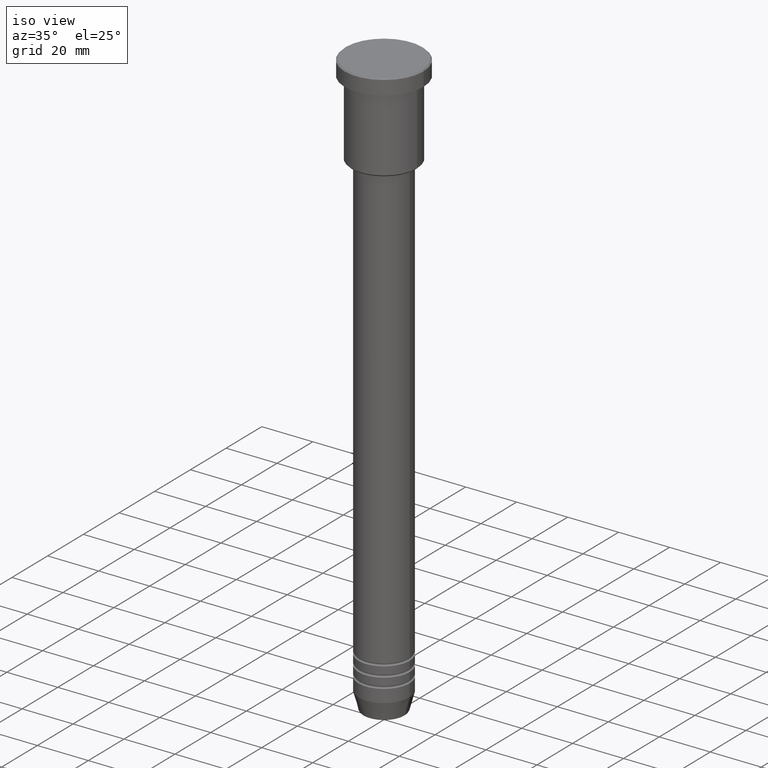
[diagram: clean part render]
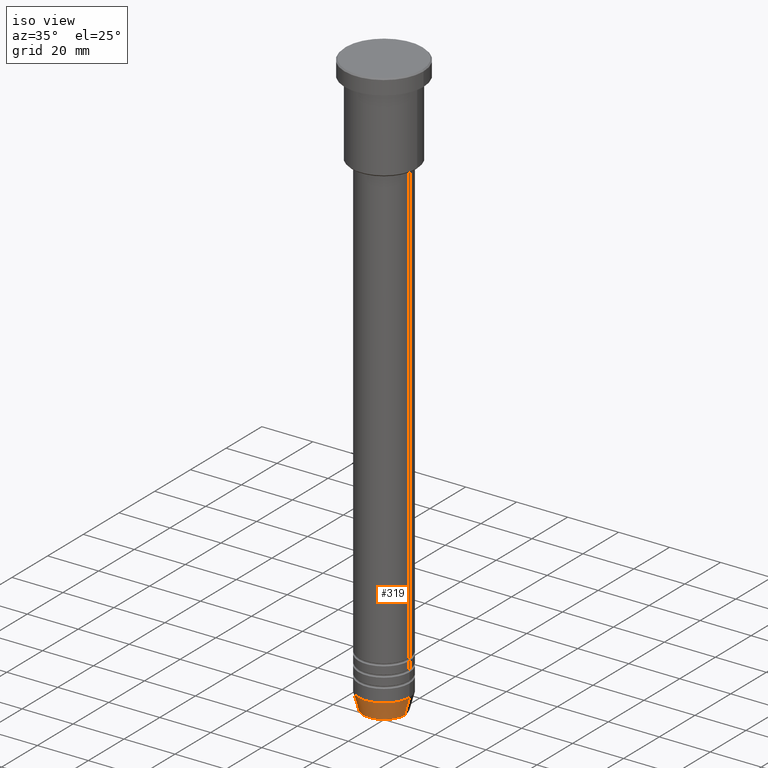
[diagram: same view with one face highlighted and labeled with its STEP entity id]
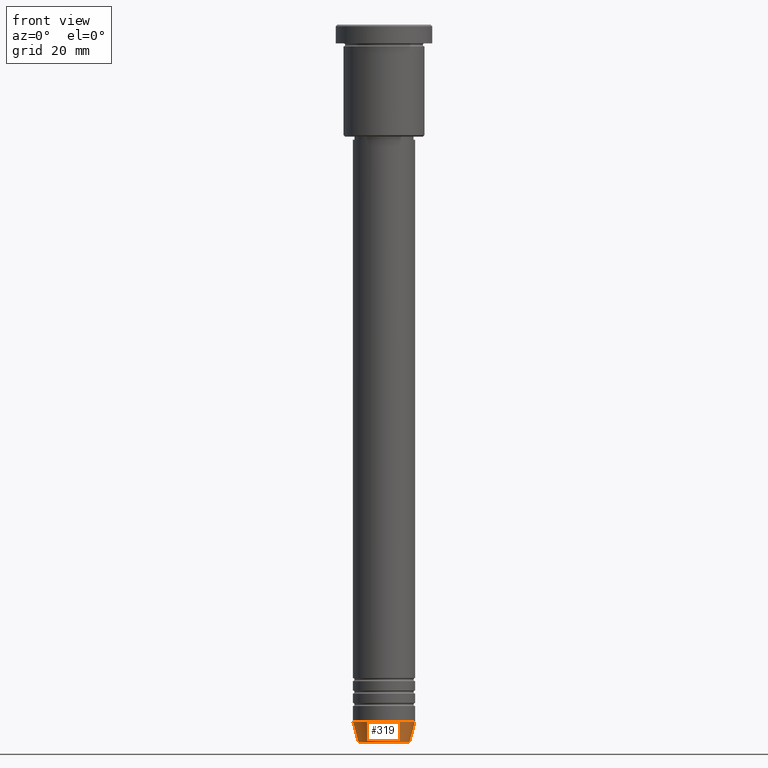
[diagram: same view with one face highlighted and labeled with its STEP entity id]
A machine part, iso view. The second image highlights one B-rep face of the part: STEP entity #319.
A second angle (front view) of the same face is appended — the face is thin or edge-on in the first view.
In plain terms, the highlighted conical surface has half-angle 15 deg.
Its self-contained STEP definition (entity closure, byte-faithful):
#9 = CIRCLE ( 'NONE', #362, 8.223655072137185940 ) ;
#43 = DIRECTION ( 'NONE',  ( -0.2588190451025210725, 3.169619151431769255E-17, 0.9659258262890680902 ) ) ;
#87 = CARTESIAN_POINT ( 'NONE',  ( 0.000000000000000000, 0.000000000000000000, -230.6294095225513274 ) ) ;
#125 = ORIENTED_EDGE ( 'NONE', *, *, #776, .T. ) ;
#167 = EDGE_LOOP ( 'NONE', ( #587, #125, #676, #810 ) ) ;
#210 = DIRECTION ( 'NONE',  ( -0.000000000000000000, -0.000000000000000000, 1.000000000000000000 ) ) ;
#233 = CARTESIAN_POINT ( 'NONE',  ( -10.00000000000000000, 1.224646799147353256E-15, -224.0000000000000284 ) ) ;
#265 = DIRECTION ( 'NONE',  ( 1.000000000000000000, 0.000000000000000000, 0.000000000000000000 ) ) ;
#308 = CARTESIAN_POINT ( 'NONE',  ( 10.00000000000000000, 0.000000000000000000, -224.0000000000000284 ) ) ;
#319 = ADVANCED_FACE ( 'NONE', ( #1103 ), #1039, .T. ) ;
#339 = CIRCLE ( 'NONE', #1116, 10.00000000000000000 ) ;
#362 = AXIS2_PLACEMENT_3D ( 'NONE', #87, #633, #563 ) ;
#417 = LINE ( 'NONE', #955, #1120 ) ;
#446 = CARTESIAN_POINT ( 'NONE',  ( 8.223655072137185940, 0.000000000000000000, -230.6294095225513274 ) ) ;
#476 = CARTESIAN_POINT ( 'NONE',  ( 0.000000000000000000, 0.000000000000000000, -224.0000000000000284 ) ) ;
#506 = CARTESIAN_POINT ( 'NONE',  ( -8.223655072137185940, 1.115877042642911659E-15, -230.6294095225513274 ) ) ;
#538 = CARTESIAN_POINT ( 'NONE',  ( 0.000000000000000000, 0.000000000000000000, -224.0000000000000284 ) ) ;
#549 = VERTEX_POINT ( 'NONE', #796 ) ;
#563 = DIRECTION ( 'NONE',  ( 1.000000000000000000, 0.000000000000000000, 0.000000000000000000 ) ) ;
#587 = ORIENTED_EDGE ( 'NONE', *, *, #965, .F. ) ;
#633 = DIRECTION ( 'NONE',  ( -0.000000000000000000, -0.000000000000000000, 1.000000000000000000 ) ) ;
#676 = ORIENTED_EDGE ( 'NONE', *, *, #970, .T. ) ;
#776 = EDGE_CURVE ( 'NONE', #952, #998, #9, .T. ) ;
#796 = CARTESIAN_POINT ( 'NONE',  ( -10.00000000000000000, 1.224646799147353256E-15, -224.0000000000000284 ) ) ;
#810 = ORIENTED_EDGE ( 'NONE', *, *, #1047, .F. ) ;
#859 = LINE ( 'NONE', #233, #961 ) ;
#868 = DIRECTION ( 'NONE',  ( 0.2588190451025210725, 0.000000000000000000, 0.9659258262890680902 ) ) ;
#937 = DIRECTION ( 'NONE',  ( 1.000000000000000000, 0.000000000000000000, 0.000000000000000000 ) ) ;
#952 = VERTEX_POINT ( 'NONE', #506 ) ;
#955 = CARTESIAN_POINT ( 'NONE',  ( 10.00000000000000000, 0.000000000000000000, -224.0000000000000284 ) ) ;
#959 = AXIS2_PLACEMENT_3D ( 'NONE', #476, #210, #937 ) ;
#961 = VECTOR ( 'NONE', #43, 1000.000000000000114 ) ;
#965 = EDGE_CURVE ( 'NONE', #952, #549, #859, .T. ) ;
#970 = EDGE_CURVE ( 'NONE', #998, #1115, #417, .T. ) ;
#998 = VERTEX_POINT ( 'NONE', #446 ) ;
#1039 = CONICAL_SURFACE ( 'NONE', #959, 10.00000000000000000, 0.2617993877991497964 ) ;
#1047 = EDGE_CURVE ( 'NONE', #549, #1115, #339, .T. ) ;
#1086 = DIRECTION ( 'NONE',  ( -0.000000000000000000, -0.000000000000000000, 1.000000000000000000 ) ) ;
#1103 = FACE_OUTER_BOUND ( 'NONE', #167, .T. ) ;
#1115 = VERTEX_POINT ( 'NONE', #308 ) ;
#1116 = AXIS2_PLACEMENT_3D ( 'NONE', #538, #1086, #265 ) ;
#1120 = VECTOR ( 'NONE', #868, 1000.000000000000114 ) ;